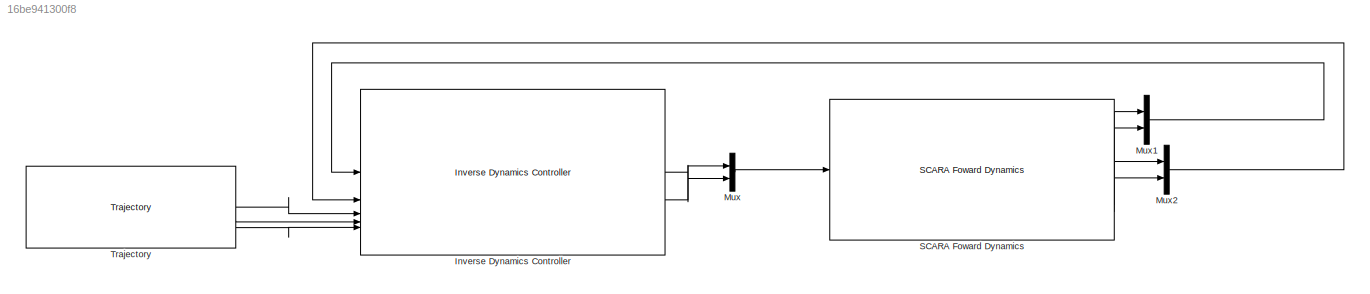
MODEL slx_16be941300f8
KIND model
CONFIG AbsTol = auto
CONFIG EnableMultiTasking = off
CONFIG FixedStep = auto
CONFIG MaxStep = auto
CONFIG MinStep = auto
CONFIG RelTol = 1e-3
CONFIG SampleTimeConstraint = Unconstrained
CONFIG SolverName = VariableStepAuto
CONFIG StartTime = 0.0
CONFIG StopTime = 10.0
BLOCK [Reference] Inverse Dynamics Controller  REF=SCR/Inverse Dynamics Controller
  SourceBlock = SCR/Inverse Dynamics Controller
BLOCK [Mux] Mux
  DisplayOption = bar
  Inputs = 2
BLOCK [Mux] Mux1
  DisplayOption = bar
  Inputs = 2
BLOCK [Mux] Mux2
  DisplayOption = bar
  Inputs = 2
BLOCK [Reference] SCARA Foward Dynamics  REF=SCR/SCARA Foward Dynamics
  SourceBlock = SCR/SCARA Foward Dynamics
BLOCK [Reference] Trajectory  REF=SCR/Trajectory
  SourceBlock = SCR/Trajectory
LINE Inverse Dynamics Controller:1 -> Mux:1
LINE Inverse Dynamics Controller:2 -> Mux:2
LINE Mux1:1 -> Inverse Dynamics Controller:1
LINE Mux2:1 -> Inverse Dynamics Controller:2
LINE Mux:1 -> SCARA Foward Dynamics:1
LINE SCARA Foward Dynamics:1 -> Mux1:1
LINE SCARA Foward Dynamics:2 -> Mux1:2
LINE SCARA Foward Dynamics:3 -> Mux2:1
LINE SCARA Foward Dynamics:4 -> Mux2:2
LINE Trajectory:1 -> Inverse Dynamics Controller:3
LINE Trajectory:2 -> Inverse Dynamics Controller:4
LINE Trajectory:3 -> Inverse Dynamics Controller:5
